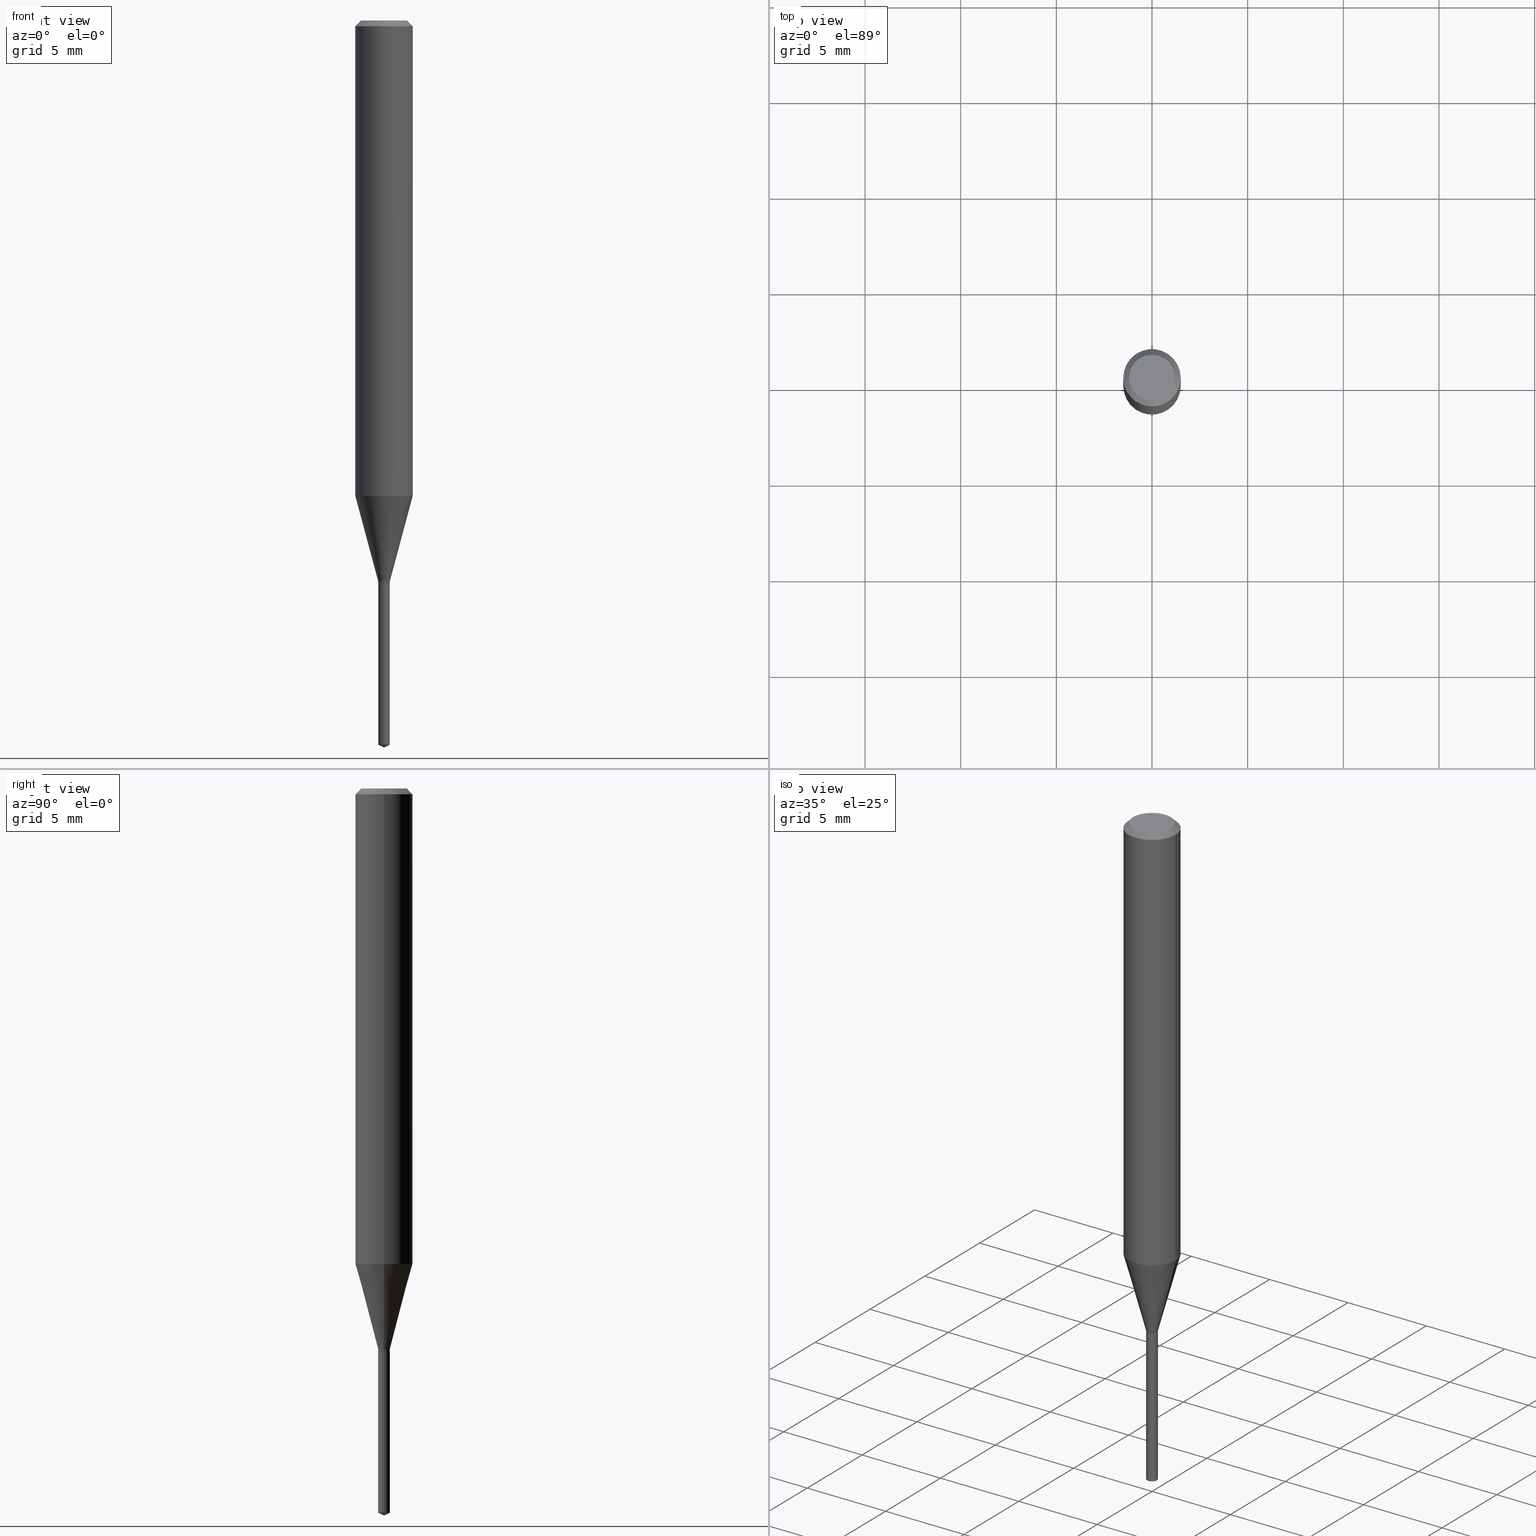
[diagram: canonical four-view strip — front | top / right | iso, engineering-drawing reading convention]
A machine part, canonical four-view strip (front | top / right | iso — engineering-drawing reading convention). The complete STEP part file that produces these views, byte-faithful:
ISO-10303-21;
HEADER;
FILE_DESCRIPTION (( 'STEP AP203' ),
    '1' );
FILE_NAME ('07780.STEP',
    '2024-04-24T02:52:34',
    ( '' ),
    ( '' ),
    'SwSTEP 2.0',
    'SolidWorks 2023',
    '' );
FILE_SCHEMA (( 'CONFIG_CONTROL_DESIGN' ));
ENDSEC;

DATA;
#1 = APPROVAL_ROLE ( '' ) ;
#2 = ORIENTED_EDGE ( 'NONE', *, *, #441, .T. ) ;
#3 = CALENDAR_DATE ( 2024, 23, 4 ) ;
#4 = EDGE_LOOP ( 'NONE', ( #203, #27, #364 ) ) ;
#5 = VECTOR ( 'NONE', #272, 39.37007874015748143 ) ;
#6 = APPROVAL_PERSON_ORGANIZATION ( #171, #343, #467 ) ;
#7 = VERTEX_POINT ( 'NONE', #122 ) ;
#8 = EDGE_CURVE ( 'NONE', #64, #270, #234, .T. ) ;
#9 = DIRECTION ( 'NONE',  ( 1.000000000000000000, -6.982962677686266711E-15, 4.876185090822587894E-29 ) ) ;
#10 = EDGE_CURVE ( 'NONE', #241, #96, #406, .T. ) ;
#11 = VERTEX_POINT ( 'NONE', #165 ) ;
#12 = DIRECTION ( 'NONE',  ( -2.445468806185136597E-29, 3.491481338843145583E-15, 1.000000000000000000 ) ) ;
#13 = AXIS2_PLACEMENT_3D ( 'NONE', #264, #444, #403 ) ;
#14 = FACE_OUTER_BOUND ( 'NONE', #304, .T. ) ;
#15 = LOCAL_TIME ( 22, 52, 34.00000000000000000, #279 ) ;
#16 = CARTESIAN_POINT ( 'NONE',  ( 2.830630143159295633E-29, -4.041389649710940900E-15, -1.157499999999999973 ) ) ;
#17 = ORIENTED_EDGE ( 'NONE', *, *, #448, .F. ) ;
#18 = DIRECTION ( 'NONE',  ( 1.000000000000000000, -6.982962677686251722E-15, 0.000000000000000000 ) ) ;
#19 = DIRECTION ( 'NONE',  ( -2.445468806185136877E-29, 3.491481338843145188E-15, 1.000000000000000000 ) ) ;
#20 = PERSON_AND_ORGANIZATION_ROLE ( 'design_supplier' ) ;
#21 = PLANE ( 'NONE',  #22 ) ;
#22 = AXIS2_PLACEMENT_3D ( 'NONE', #179, #149, #332 ) ;
#23 = CIRCLE ( 'NONE', #193, 0.01149999999999999981 ) ;
#24 = CC_DESIGN_DATE_AND_TIME_ASSIGNMENT ( #320, #187, ( #451 ) ) ;
#25 = LINE ( 'NONE', #392, #245 ) ;
#26 = FACE_OUTER_BOUND ( 'NONE', #269, .T. ) ;
#27 = ORIENTED_EDGE ( 'NONE', *, *, #408, .T. ) ;
#28 = DIRECTION ( 'NONE',  ( -2.445457056059012515E-29, 3.491498165692530705E-15, 1.000000000000000000 ) ) ;
#29 = CIRCLE ( 'NONE', #213, 0.05904999999999999832 ) ;
#30 = EDGE_CURVE ( 'NONE', #266, #170, #380, .T. ) ;
#31 = DIRECTION ( 'NONE',  ( 1.000000000000000000, -6.982962677686251722E-15, 0.000000000000000000 ) ) ;
#32 = DATE_TIME_ROLE ( 'classification_date' ) ;
#33 = ADVANCED_FACE ( 'NONE', ( #417 ), #56, .T. ) ;
#34 = CARTESIAN_POINT ( 'NONE',  ( 2.821826455457028920E-29, -4.028820316891105286E-15, -1.153899999999999926 ) ) ;
#35 = ORIENTED_EDGE ( 'NONE', *, *, #441, .F. ) ;
#36 = DIRECTION ( 'NONE',  ( 1.000000000000000000, -6.982962677686247778E-15, 0.000000000000000000 ) ) ;
#37 = ADVANCED_FACE ( 'NONE', ( #344 ), #54, .T. ) ;
#38 = LOCAL_TIME ( 22, 52, 34.00000000000000000, #326 ) ;
#39 = DIRECTION ( 'NONE',  ( -2.445468806185136597E-29, 3.491481338843145583E-15, 1.000000000000000000 ) ) ;
#40 = EDGE_CURVE ( 'NONE', #311, #71, #413, .T. ) ;
#41 = EDGE_LOOP ( 'NONE', ( #314, #251 ) ) ;
#42 = ORIENTED_EDGE ( 'NONE', *, *, #121, .F. ) ;
#43 = ORIENTED_EDGE ( 'NONE', *, *, #121, .T. ) ;
#44 = ORIENTED_EDGE ( 'NONE', *, *, #448, .T. ) ;
#45 = UNCERTAINTY_MEASURE_WITH_UNIT (LENGTH_MEASURE( 1.000000000000000082E-05 ), #135, 'distance_accuracy_value', 'NONE');
#46 = EDGE_LOOP ( 'NONE', ( #360, #87, #453, #275 ) ) ;
#47 = ADVANCED_FACE ( 'NONE', ( #14 ), #319, .T. ) ;
#48 = CONICAL_SURFACE ( 'NONE', #439, 0.01200000000000000025, 0.2617993877991500740 ) ;
#49 =( GEOMETRIC_REPRESENTATION_CONTEXT ( 3 ) GLOBAL_UNCERTAINTY_ASSIGNED_CONTEXT ( ( #45 ) ) GLOBAL_UNIT_ASSIGNED_CONTEXT ( ( #135, #133, #52 ) ) REPRESENTATION_CONTEXT ( 'NONE', 'WORKASPACE' ) );
#50 = DIRECTION ( 'NONE',  ( -6.328713451373352024E-15, -0.9063077870366461619, 0.4226182617407073239 ) ) ;
#51 = ORIENTED_EDGE ( 'NONE', *, *, #92, .T. ) ;
#52 =( NAMED_UNIT ( * ) SI_UNIT ( $, .STERADIAN. ) SOLID_ANGLE_UNIT ( ) );
#53 = EDGE_CURVE ( 'NONE', #241, #461, #195, .T. ) ;
#54 = CYLINDRICAL_SURFACE ( 'NONE', #472, 0.01200000000000000025 ) ;
#55 = APPLICATION_PROTOCOL_DEFINITION ( 'international standard', 'config_control_design', 1994, #164 ) ;
#56 = CYLINDRICAL_SURFACE ( 'NONE', #302, 0.01200000000000000025 ) ;
#57 = ORIENTED_EDGE ( 'NONE', *, *, #363, .F. ) ;
#58 = DIRECTION ( 'NONE',  ( 1.000000000000000000, -6.982962677686266711E-15, 0.000000000000000000 ) ) ;
#59 = CLOSED_SHELL ( 'NONE', ( #309, #116, #263, #416, #37, #33, #178, #393, #47, #221, #174, #280 ) ) ;
#60 = DIRECTION ( 'NONE',  ( -1.000000000000000000, 6.982962677686266711E-15, 0.000000000000000000 ) ) ;
#61 = CIRCLE ( 'NONE', #303, 0.01149999999999999981 ) ;
#62 = ADVANCED_FACE ( 'NONE', ( #206 ), #412, .T. ) ;
#63 = FACE_OUTER_BOUND ( 'NONE', #94, .T. ) ;
#64 = VERTEX_POINT ( 'NONE', #432 ) ;
#65 = CARTESIAN_POINT ( 'NONE',  ( 0.000000000000000000, 0.000000000000000000, 0.000000000000000000 ) ) ;
#66 = FACE_OUTER_BOUND ( 'NONE', #41, .T. ) ;
#67 = FACE_OUTER_BOUND ( 'NONE', #386, .T. ) ;
#68 = AXIS2_PLACEMENT_3D ( 'NONE', #115, #262, #409 ) ;
#69 = VERTEX_POINT ( 'NONE', #475 ) ;
#70 = SECURITY_CLASSIFICATION_LEVEL ( 'unclassified' ) ;
#71 = VERTEX_POINT ( 'NONE', #359 ) ;
#72 = CARTESIAN_POINT ( 'NONE',  ( 2.888098660104664642E-31, -4.123439461173780879E-17, -0.01181000000000007565 ) ) ;
#73 = FACE_OUTER_BOUND ( 'NONE', #105, .T. ) ;
#74 = DIRECTION ( 'NONE',  ( 1.000000000000000000, -6.982962677686247778E-15, 0.000000000000000000 ) ) ;
#75 = PERSON_AND_ORGANIZATION ( #383, #252 ) ;
#76 = PRODUCT_DEFINITION_FORMATION_WITH_SPECIFIED_SOURCE ( 'ANY', '', #340, .NOT_KNOWN. ) ;
#77 = CARTESIAN_POINT ( 'NONE',  ( 0.01200000000000000025, -4.112615869023340613E-15, -1.153899999999999926 ) ) ;
#78 = EDGE_CURVE ( 'NONE', #96, #7, #134, .T. ) ;
#79 = PLANE ( 'NONE',  #68 ) ;
#80 = DIRECTION ( 'NONE',  ( -2.445468806185136597E-29, 3.491481338843145583E-15, 1.000000000000000000 ) ) ;
#81 = VECTOR ( 'NONE', #324, 39.37007874015748143 ) ;
#82 = APPROVAL_PERSON_ORGANIZATION ( #75, #358, #1 ) ;
#83 = DIRECTION ( 'NONE',  ( -2.445468806185136597E-29, 3.491481338843145583E-15, 1.000000000000000000 ) ) ;
#84 = ADVANCED_BREP_SHAPE_REPRESENTATION ( '07780', ( #138, #294, #487 ), #49 ) ;
#85 = ORIENTED_EDGE ( 'NONE', *, *, #53, .T. ) ;
#86 = EDGE_CURVE ( 'NONE', #11, #69, #477, .T. ) ;
#87 = ORIENTED_EDGE ( 'NONE', *, *, #8, .T. ) ;
#88 = DIRECTION ( 'NONE',  ( 1.000000000000000000, -6.982962677686247778E-15, 0.000000000000000000 ) ) ;
#89 = AXIS2_PLACEMENT_3D ( 'NONE', #298, #39, #191 ) ;
#90 = CIRCLE ( 'NONE', #127, 0.04724000000000000421 ) ;
#91 = DIRECTION ( 'NONE',  ( -2.445468806185136597E-29, 3.491481338843145583E-15, 1.000000000000000000 ) ) ;
#92 = EDGE_CURVE ( 'NONE', #170, #166, #25, .T. ) ;
#93 = DIRECTION ( 'NONE',  ( 1.000000000000000000, -6.982962677686266711E-15, 4.876176775795935232E-29 ) ) ;
#94 = EDGE_LOOP ( 'NONE', ( #414, #85, #361, #375 ) ) ;
#95 = DIRECTION ( 'NONE',  ( -2.445468806185136877E-29, 3.491481338843145188E-15, 1.000000000000000000 ) ) ;
#96 = VERTEX_POINT ( 'NONE', #321 ) ;
#97 =( LENGTH_UNIT ( ) NAMED_UNIT ( * ) SI_UNIT ( $, .METRE. ) );
#98 = CARTESIAN_POINT ( 'NONE',  ( 2.392419274614015052E-29, -3.415740667342255864E-15, -0.9783070095038842728 ) ) ;
#99 = LOCAL_TIME ( 22, 52, 34.00000000000000000, #371 ) ;
#100 = DIRECTION ( 'NONE',  ( -2.445457056059012515E-29, 3.491498165692530705E-15, 1.000000000000000000 ) ) ;
#101 = EDGE_CURVE ( 'NONE', #71, #461, #106, .T. ) ;
#102 = CARTESIAN_POINT ( 'NONE',  ( -0.01200000000000000025, -3.943555188599893977E-15, -1.153899999999999926 ) ) ;
#103 = EDGE_LOOP ( 'NONE', ( #233, #44, #381, #35 ) ) ;
#104 = CALENDAR_DATE ( 2024, 23, 4 ) ;
#105 = EDGE_LOOP ( 'NONE', ( #176, #147, #238, #425 ) ) ;
#106 = LINE ( 'NONE', #146, #159 ) ;
#107 = AXIS2_PLACEMENT_3D ( 'NONE', #307, #91, #9 ) ;
#108 = LOCAL_TIME ( 22, 52, 34.00000000000000000, #478 ) ;
#109 = ORIENTED_EDGE ( 'NONE', *, *, #199, .T. ) ;
#110 = DIRECTION ( 'NONE',  ( -2.445468806185136597E-29, 3.491481338843145583E-15, 1.000000000000000000 ) ) ;
#111 = DIRECTION ( 'NONE',  ( -2.445468806185136597E-29, 3.491481338843145583E-15, 1.000000000000000000 ) ) ;
#112 = DIRECTION ( 'NONE',  ( -2.445468806185136597E-29, 3.491481338843145583E-15, 1.000000000000000000 ) ) ;
#113 = VECTOR ( 'NONE', #19, 39.37007874015748143 ) ;
#114 = CIRCLE ( 'NONE', #390, 0.01200000000000000025 ) ;
#115 = CARTESIAN_POINT ( 'NONE',  ( 2.830630143159295633E-29, -4.041389649710940900E-15, -1.157499999999999973 ) ) ;
#116 = ADVANCED_FACE ( 'NONE', ( #63 ), #118, .T. ) ;
#117 = DIRECTION ( 'NONE',  ( -2.445457056059012515E-29, 3.491498165692530705E-15, 1.000000000000000000 ) ) ;
#118 = CONICAL_SURFACE ( 'NONE', #373, 0.05904999999999999832, 0.7853981633974450594 ) ;
#119 = CIRCLE ( 'NONE', #473, 0.01200000000000000025 ) ;
#120 = ORIENTED_EDGE ( 'NONE', *, *, #433, .T. ) ;
#121 = EDGE_CURVE ( 'NONE', #11, #311, #379, .T. ) ;
#122 = CARTESIAN_POINT ( 'NONE',  ( -0.05904999999999999832, -1.308912045510656317E-15, -0.01181000000000007565 ) ) ;
#123 = FACE_OUTER_BOUND ( 'NONE', #459, .T. ) ;
#124 = ORIENTED_EDGE ( 'NONE', *, *, #139, .F. ) ;
#125 = EDGE_CURVE ( 'NONE', #7, #461, #29, .T. ) ;
#126 = CARTESIAN_POINT ( 'NONE',  ( 2.830630143159295633E-29, -4.041389649710940900E-15, -1.157499999999999973 ) ) ;
#127 = AXIS2_PLACEMENT_3D ( 'NONE', #334, #479, #219 ) ;
#128 = ORIENTED_EDGE ( 'NONE', *, *, #408, .F. ) ;
#129 = ORIENTED_EDGE ( 'NONE', *, *, #346, .T. ) ;
#130 = DIRECTION ( 'NONE',  ( -0.7071067811865218156, 7.493145998870261075E-15, 0.7071067811865732189 ) ) ;
#131 = DIRECTION ( 'NONE',  ( 1.000000000000000000, -6.982962677686265922E-15, 4.876176775795935793E-29 ) ) ;
#132 = ORIENTED_EDGE ( 'NONE', *, *, #148, .F. ) ;
#133 =( NAMED_UNIT ( * ) PLANE_ANGLE_UNIT ( ) SI_UNIT ( $, .RADIAN. ) );
#134 = LINE ( 'NONE', #214, #81 ) ;
#135 =( CONVERSION_BASED_UNIT ( 'INCH', #470 ) LENGTH_UNIT ( ) NAMED_UNIT ( #231 ) );
#136 = AXIS2_PLACEMENT_3D ( 'NONE', #243, #471, #291 ) ;
#137 = VECTOR ( 'NONE', #349, 39.37007874015747433 ) ;
#138 = MANIFOLD_SOLID_BREP ( 'Body-Move/Copy2[1]', #267 ) ;
#139 = EDGE_CURVE ( 'NONE', #435, #311, #211, .T. ) ;
#140 = CARTESIAN_POINT ( 'NONE',  ( 0.05904999999999999832, -4.463468013801466955E-16, -0.01181000000000007565 ) ) ;
#141 = CONICAL_SURFACE ( 'NONE', #430, 0.01200000000000000025, 0.2617993877991500740 ) ;
#142 = PERSON_AND_ORGANIZATION ( #383, #252 ) ;
#143 = CARTESIAN_POINT ( 'NONE',  ( 0.01200000000000000025, -8.379555213223520348E-17, 5.851412130955122461E-31 ) ) ;
#144 = EDGE_CURVE ( 'NONE', #166, #270, #405, .T. ) ;
#145 = APPROVAL_ROLE ( '' ) ;
#146 = CARTESIAN_POINT ( 'NONE',  ( 0.05905000000000006771, -4.123439461173745257E-16, 2.879382386107503723E-30 ) ) ;
#147 = ORIENTED_EDGE ( 'NONE', *, *, #190, .T. ) ;
#148 = EDGE_CURVE ( 'NONE', #71, #69, #429, .T. ) ;
#149 = DIRECTION ( 'NONE',  ( 2.438088387897960049E-29, -3.491481338843145188E-15, -1.000000000000000000 ) ) ;
#150 = CONICAL_SURFACE ( 'NONE', #335, 0.01149999999999999981, 0.7853981633974119747 ) ;
#151 = AXIS2_PLACEMENT_3D ( 'NONE', #292, #110, #188 ) ;
#152 = CC_DESIGN_DATE_AND_TIME_ASSIGNMENT ( #296, #32, ( #260 ) ) ;
#153 = CARTESIAN_POINT ( 'NONE',  ( -0.01200000000000000025, -3.948966984675101032E-15, -1.156999999999999806 ) ) ;
#154 = CYLINDRICAL_SURFACE ( 'NONE', #13, 0.05905000000000006771 ) ;
#155 = CARTESIAN_POINT ( 'NONE',  ( 3.644977878105722837E-29, -5.204073580617272931E-15, -1.490504308102139852 ) ) ;
#156 = DIRECTION ( 'NONE',  ( -6.982962677686265922E-15, -1.000000000000000000, 0.000000000000000000 ) ) ;
#157 = LINE ( 'NONE', #244, #466 ) ;
#158 = ORIENTED_EDGE ( 'NONE', *, *, #78, .T. ) ;
#159 = VECTOR ( 'NONE', #95, 39.37007874015748143 ) ;
#160 = EDGE_LOOP ( 'NONE', ( #437, #232, #180, #342 ) ) ;
#161 = CC_DESIGN_SECURITY_CLASSIFICATION ( #260, ( #76 ) ) ;
#162 = ORIENTED_EDGE ( 'NONE', *, *, #8, .F. ) ;
#163 = ORIENTED_EDGE ( 'NONE', *, *, #338, .T. ) ;
#164 = APPLICATION_CONTEXT ( 'configuration controlled 3d designs of mechanical parts and assemblies' ) ;
#165 = CARTESIAN_POINT ( 'NONE',  ( -0.01200000000000000025, -3.948966984675101032E-15, -1.153899999999999926 ) ) ;
#166 = VERTEX_POINT ( 'NONE', #172 ) ;
#167 = APPLICATION_PROTOCOL_DEFINITION ( 'international standard', 'config_control_design', 1994, #446 ) ;
#168 = AXIS2_PLACEMENT_3D ( 'NONE', #16, #388, #434 ) ;
#169 = DIRECTION ( 'NONE',  ( 2.445468806185136597E-29, -3.491481338843145583E-15, -1.000000000000000000 ) ) ;
#170 = VERTEX_POINT ( 'NONE', #250 ) ;
#171 = PERSON_AND_ORGANIZATION ( #383, #252 ) ;
#172 = CARTESIAN_POINT ( 'NONE',  ( -8.379555213220687845E-17, -0.01200000000000404216, -1.157499999999999973 ) ) ;
#173 = CARTESIAN_POINT ( 'NONE',  ( -0.01149999999999999981, -3.959677235098528912E-15, -1.157499999999999973 ) ) ;
#174 = ADVANCED_FACE ( 'NONE', ( #26 ), #316, .F. ) ;
#175 = LINE ( 'NONE', #318, #177 ) ;
#176 = ORIENTED_EDGE ( 'NONE', *, *, #148, .T. ) ;
#177 = VECTOR ( 'NONE', #288, 39.37007874015748143 ) ;
#178 = ADVANCED_FACE ( 'NONE', ( #67 ), #48, .T. ) ;
#179 = CARTESIAN_POINT ( 'NONE',  ( 4.132873053354867254E-48, -5.900647395337818946E-34, -1.690012582823346072E-19 ) ) ;
#180 = ORIENTED_EDGE ( 'NONE', *, *, #101, .T. ) ;
#181 = PERSON_AND_ORGANIZATION ( #383, #252 ) ;
#182 = CARTESIAN_POINT ( 'NONE',  ( 2.829407408756202832E-29, -4.039643909041518608E-15, -1.156999999999999806 ) ) ;
#183 = EDGE_CURVE ( 'NONE', #415, #11, #284, .T. ) ;
#184 = CARTESIAN_POINT ( 'NONE',  ( -9.261917495037615480E-28, 1.322369467758159045E-13, 37.87397874015748300 ) ) ;
#185 = ORIENTED_EDGE ( 'NONE', *, *, #346, .F. ) ;
#186 = CARTESIAN_POINT ( 'NONE',  ( 3.658648301569888039E-29, -5.223630405692595388E-15, -1.496099999999999985 ) ) ;
#187 = DATE_TIME_ROLE ( 'creation_date' ) ;
#188 = DIRECTION ( 'NONE',  ( 1.000000000000000000, -6.982962677686266711E-15, 4.876176775795936353E-29 ) ) ;
#189 = DATE_AND_TIME ( #3, #99 ) ;
#190 = EDGE_CURVE ( 'NONE', #69, #7, #175, .T. ) ;
#191 = DIRECTION ( 'NONE',  ( 1.000000000000000000, -6.982962677686265133E-15, 0.000000000000000000 ) ) ;
#192 = FACE_OUTER_BOUND ( 'NONE', #46, .T. ) ;
#193 = AXIS2_PLACEMENT_3D ( 'NONE', #348, #12, #88 ) ;
#194 = CARTESIAN_POINT ( 'NONE',  ( 2.830630143159295633E-29, -4.041389649710940900E-15, -1.157499999999999973 ) ) ;
#195 = LINE ( 'NONE', #140, #286 ) ;
#196 = EDGE_LOOP ( 'NONE', ( #109, #200, #57, #124 ) ) ;
#197 = VECTOR ( 'NONE', #130, 39.37007874015748143 ) ;
#198 = CARTESIAN_POINT ( 'NONE',  ( 0.000000000000000000, 0.000000000000000000, 0.000000000000000000 ) ) ;
#199 = EDGE_CURVE ( 'NONE', #435, #415, #235, .T. ) ;
#200 = ORIENTED_EDGE ( 'NONE', *, *, #183, .T. ) ;
#201 = APPROVAL_STATUS ( 'not_yet_approved' ) ;
#202 = CARTESIAN_POINT ( 'NONE',  ( 0.01200000000000000025, -4.112615869023340613E-15, -1.153899999999999926 ) ) ;
#203 = ORIENTED_EDGE ( 'NONE', *, *, #30, .F. ) ;
#204 = DIRECTION ( 'NONE',  ( -2.445468806185136597E-29, 3.491481338843145583E-15, 1.000000000000000000 ) ) ;
#205 = AXIS2_PLACEMENT_3D ( 'NONE', #34, #80, #31 ) ;
#206 = FACE_OUTER_BOUND ( 'NONE', #4, .T. ) ;
#207 = CARTESIAN_POINT ( 'NONE',  ( 0.05904999999999999832, -4.535783407291118600E-16, -0.01181000000000007565 ) ) ;
#208 = CARTESIAN_POINT ( 'NONE',  ( 2.888098660104664642E-31, -4.123439461173780879E-17, -0.01181000000000007565 ) ) ;
#209 = CC_DESIGN_PERSON_AND_ORGANIZATION_ASSIGNMENT ( #142, #289, ( #260 ) ) ;
#210 = PERSON_AND_ORGANIZATION_ROLE ( 'creator' ) ;
#211 = LINE ( 'NONE', #143, #367 ) ;
#212 = ORIENTED_EDGE ( 'NONE', *, *, #30, .T. ) ;
#213 = AXIS2_PLACEMENT_3D ( 'NONE', #72, #323, #354 ) ;
#214 = CARTESIAN_POINT ( 'NONE',  ( -0.05904999999999999832, 3.711095515056362547E-16, -0.01181000000000007565 ) ) ;
#215 = ORIENTED_EDGE ( 'NONE', *, *, #395, .F. ) ;
#216 = DIRECTION ( 'NONE',  ( -2.445468806185136597E-29, 3.491481338843145583E-15, 1.000000000000000000 ) ) ;
#217 = APPROVAL_DATE_TIME ( #401, #366 ) ;
#218 = FACE_OUTER_BOUND ( 'NONE', #103, .T. ) ;
#219 = DIRECTION ( 'NONE',  ( 1.000000000000000000, -6.982962677686266711E-15, 4.876185090822587894E-29 ) ) ;
#220 = APPROVAL_STATUS ( 'not_yet_approved' ) ;
#221 = ADVANCED_FACE ( 'NONE', ( #66 ), #21, .F. ) ;
#222 = FACE_OUTER_BOUND ( 'NONE', #228, .T. ) ;
#223 = SHAPE_DEFINITION_REPRESENTATION ( #484, #84 ) ;
#224 = EDGE_CURVE ( 'NONE', #69, #71, #297, .T. ) ;
#225 = CARTESIAN_POINT ( 'NONE',  ( 2.830630143159295633E-29, -4.041389649710940900E-15, -1.157499999999999973 ) ) ;
#226 = CARTESIAN_POINT ( 'NONE',  ( -9.261917495037615480E-28, 1.322369467758159045E-13, 37.87397874015748300 ) ) ;
#227 = ADVANCED_FACE ( 'NONE', ( #192 ), #300, .T. ) ;
#228 = EDGE_LOOP ( 'NONE', ( #163, #120, #278, #301 ) ) ;
#229 = AXIS2_PLACEMENT_3D ( 'NONE', #226, #117, #488 ) ;
#230 = CARTESIAN_POINT ( 'NONE',  ( 2.888098660104664642E-31, -4.123439461173780879E-17, -0.01181000000000007565 ) ) ;
#231 = DIMENSIONAL_EXPONENTS ( 1.000000000000000000, 0.000000000000000000, 0.000000000000000000, 0.000000000000000000, 0.000000000000000000, 0.000000000000000000, 0.000000000000000000 ) ;
#232 = ORIENTED_EDGE ( 'NONE', *, *, #224, .T. ) ;
#233 = ORIENTED_EDGE ( 'NONE', *, *, #433, .F. ) ;
#234 = LINE ( 'NONE', #312, #5 ) ;
#235 = CIRCLE ( 'NONE', #464, 0.01200000000000000025 ) ;
#236 = AXIS2_PLACEMENT_3D ( 'NONE', #285, #306, #58 ) ;
#237 = CARTESIAN_POINT ( 'NONE',  ( -0.01149999999999999981, -3.957028007924417711E-15, -1.157499999999999973 ) ) ;
#238 = ORIENTED_EDGE ( 'NONE', *, *, #436, .F. ) ;
#239 = ORIENTED_EDGE ( 'NONE', *, *, #125, .T. ) ;
#240 = ORIENTED_EDGE ( 'NONE', *, *, #224, .F. ) ;
#241 = VERTEX_POINT ( 'NONE', #295 ) ;
#242 = DATE_AND_TIME ( #423, #15 ) ;
#243 = CARTESIAN_POINT ( 'NONE',  ( 2.821826455457028920E-29, -4.028820316891105286E-15, -1.153899999999999926 ) ) ;
#244 = CARTESIAN_POINT ( 'NONE',  ( 0.01149999999999999981, -4.121693720504332431E-15, -1.157499999999999973 ) ) ;
#245 = VECTOR ( 'NONE', #100, 39.37007874015748143 ) ;
#246 = AXIS2_PLACEMENT_3D ( 'NONE', #256, #372, #485 ) ;
#247 = DIRECTION ( 'NONE',  ( -0.2588190451025213501, 5.211531920934551042E-15, 0.9659258262890682012 ) ) ;
#248 = PRODUCT_RELATED_PRODUCT_CATEGORY ( 'detail', '', ( #340 ) ) ;
#249 = DIRECTION ( 'NONE',  ( -2.445468806185136597E-29, 3.491481338843145583E-15, 1.000000000000000000 ) ) ;
#250 = CARTESIAN_POINT ( 'NONE',  ( -8.379555213219874332E-17, -0.01200000000000520442, -1.490504308102139852 ) ) ;
#251 = ORIENTED_EDGE ( 'NONE', *, *, #10, .T. ) ;
#252 = ORGANIZATION ( 'UNSPECIFIED', 'UNSPECIFIED', '' ) ;
#253 = DIRECTION ( 'NONE',  ( -2.438088387897960049E-29, 3.491481338843145188E-15, 1.000000000000000000 ) ) ;
#254 = DIRECTION ( 'NONE',  ( -6.982962677686265922E-15, -1.000000000000000000, 0.000000000000000000 ) ) ;
#255 = CALENDAR_DATE ( 2024, 23, 4 ) ;
#256 = CARTESIAN_POINT ( 'NONE',  ( 2.830630143159295633E-29, -4.041389649710940900E-15, -1.157499999999999973 ) ) ;
#257 = ADVANCED_FACE ( 'NONE', ( #443 ), #308, .T. ) ;
#258 = APPROVAL_STATUS ( 'not_yet_approved' ) ;
#259 = DIRECTION ( 'NONE',  ( 1.000000000000000000, -6.982962677686251722E-15, 0.000000000000000000 ) ) ;
#260 = SECURITY_CLASSIFICATION ( '', '', #70 ) ;
#261 = CC_DESIGN_PERSON_AND_ORGANIZATION_ASSIGNMENT ( #355, #20, ( #76 ) ) ;
#262 = DIRECTION ( 'NONE',  ( 2.445457056059012235E-29, -3.491498165692530705E-15, -1.000000000000000000 ) ) ;
#263 = ADVANCED_FACE ( 'NONE', ( #73 ), #154, .T. ) ;
#264 = CARTESIAN_POINT ( 'NONE',  ( 0.000000000000000000, 0.000000000000000000, 0.000000000000000000 ) ) ;
#265 = ORIENTED_EDGE ( 'NONE', *, *, #86, .F. ) ;
#266 = VERTEX_POINT ( 'NONE', #186 ) ;
#267 = CLOSED_SHELL ( 'NONE', ( #227, #62, #257, #482, #427 ) ) ;
#268 = CC_DESIGN_APPROVAL ( #366, ( #76 ) ) ;
#269 = EDGE_LOOP ( 'NONE', ( #282, #17 ) ) ;
#270 = VERTEX_POINT ( 'NONE', #374 ) ;
#271 = ORIENTED_EDGE ( 'NONE', *, *, #86, .T. ) ;
#272 = DIRECTION ( 'NONE',  ( -2.445457056059012515E-29, 3.491498165692530705E-15, 1.000000000000000000 ) ) ;
#273 = AXIS2_PLACEMENT_3D ( 'NONE', #184, #424, #396 ) ;
#274 = CIRCLE ( 'NONE', #357, 0.01200000000000000025 ) ;
#275 = ORIENTED_EDGE ( 'NONE', *, *, #92, .F. ) ;
#276 = DIRECTION ( 'NONE',  ( 1.000000000000000000, 0.000000000000000000, 0.000000000000000000 ) ) ;
#277 = CARTESIAN_POINT ( 'NONE',  ( 0.000000000000000000, 0.000000000000000000, 0.000000000000000000 ) ) ;
#278 = ORIENTED_EDGE ( 'NONE', *, *, #199, .F. ) ;
#279 = COORDINATED_UNIVERSAL_TIME_OFFSET ( 5, 0, .BEHIND. ) ;
#280 = ADVANCED_FACE ( 'NONE', ( #218 ), #150, .T. ) ;
#281 = DIRECTION ( 'NONE',  ( 0.7071067811865452413, -7.319954787623248157E-15, -0.7071067811865497932 ) ) ;
#282 = ORIENTED_EDGE ( 'NONE', *, *, #338, .F. ) ;
#283 = PERSON_AND_ORGANIZATION ( #383, #252 ) ;
#284 = LINE ( 'NONE', #428, #113 ) ;
#285 = CARTESIAN_POINT ( 'NONE',  ( 2.888098660104664642E-31, -4.123439461173780879E-17, -0.01181000000000007565 ) ) ;
#286 = VECTOR ( 'NONE', #281, 39.37007874015748143 ) ;
#287 = CIRCLE ( 'NONE', #205, 0.01200000000000000025 ) ;
#288 = DIRECTION ( 'NONE',  ( -2.445468806185136877E-29, 3.491481338843145188E-15, 1.000000000000000000 ) ) ;
#289 = PERSON_AND_ORGANIZATION_ROLE ( 'classification_officer' ) ;
#290 = CARTESIAN_POINT ( 'NONE',  ( 2.821826455457028920E-29, -4.028820316891105286E-15, -1.153899999999999926 ) ) ;
#291 = DIRECTION ( 'NONE',  ( 1.000000000000000000, -6.982962677686251722E-15, 0.000000000000000000 ) ) ;
#292 = CARTESIAN_POINT ( 'NONE',  ( 0.000000000000000000, 0.000000000000000000, 0.000000000000000000 ) ) ;
#293 = FACE_OUTER_BOUND ( 'NONE', #160, .T. ) ;
#294 = MANIFOLD_SOLID_BREP ( 'Body-Move/Copy2[2]', #59 ) ;
#295 = CARTESIAN_POINT ( 'NONE',  ( 0.04724000000000000421, -3.852183633974369345E-16, -3.380025165621689721E-19 ) ) ;
#296 = DATE_AND_TIME ( #104, #108 ) ;
#297 = CIRCLE ( 'NONE', #89, 0.05905000000000013016 ) ;
#298 = CARTESIAN_POINT ( 'NONE',  ( 2.392419274614015052E-29, -3.415740667342255864E-15, -0.9783070095038842728 ) ) ;
#299 = AXIS2_PLACEMENT_3D ( 'NONE', #126, #490, #463 ) ;
#300 = CYLINDRICAL_SURFACE ( 'NONE', #397, 0.01200000000000000025 ) ;
#301 = ORIENTED_EDGE ( 'NONE', *, *, #455, .F. ) ;
#302 = AXIS2_PLACEMENT_3D ( 'NONE', #198, #83, #465 ) ;
#303 = AXIS2_PLACEMENT_3D ( 'NONE', #225, #369, #36 ) ;
#304 = EDGE_LOOP ( 'NONE', ( #419, #305, #158, #239 ) ) ;
#305 = ORIENTED_EDGE ( 'NONE', *, *, #333, .F. ) ;
#306 = DIRECTION ( 'NONE',  ( -2.445468806185136597E-29, 3.491481338843145583E-15, 1.000000000000000000 ) ) ;
#307 = CARTESIAN_POINT ( 'NONE',  ( 8.265746106709734507E-48, -1.180129479067563789E-33, -3.380025165646692144E-19 ) ) ;
#308 = CONICAL_SURFACE ( 'NONE', #229, 84.42940631927278616, 1.134464013796308901 ) ;
#309 = ADVANCED_FACE ( 'NONE', ( #222 ), #457, .T. ) ;
#310 = LOCAL_TIME ( 22, 52, 34.00000000000000000, #474 ) ;
#311 = VERTEX_POINT ( 'NONE', #77 ) ;
#312 = CARTESIAN_POINT ( 'NONE',  ( 8.526512829124031214E-17, 0.01199999999999595661, -1.157499999999999973 ) ) ;
#313 = DESIGN_CONTEXT ( 'detailed design', #164, 'design' ) ;
#314 = ORIENTED_EDGE ( 'NONE', *, *, #333, .T. ) ;
#315 = CARTESIAN_POINT ( 'NONE',  ( 0.01149999999999999981, -4.121693720504332431E-15, -1.157499999999999973 ) ) ;
#316 = PLANE ( 'NONE',  #486 ) ;
#317 = CARTESIAN_POINT ( 'NONE',  ( 3.644977878105722837E-29, -5.204073580617272931E-15, -1.490504308102139852 ) ) ;
#318 = CARTESIAN_POINT ( 'NONE',  ( -0.05905000000000006771, 4.195754854663396409E-16, -2.904631170795525045E-30 ) ) ;
#319 = CONICAL_SURFACE ( 'NONE', #456, 0.05904999999999999832, 0.7853981633974450594 ) ;
#320 = DATE_AND_TIME ( #445, #38 ) ;
#321 = CARTESIAN_POINT ( 'NONE',  ( -0.04724000000000000421, 3.504923541997677355E-16, -3.380025165670481712E-19 ) ) ;
#322 = PERSON_AND_ORGANIZATION_ROLE ( 'creator' ) ;
#323 = DIRECTION ( 'NONE',  ( -2.445468806185136597E-29, 3.491481338843145583E-15, 1.000000000000000000 ) ) ;
#324 = DIRECTION ( 'NONE',  ( -0.7071067811865452413, 2.468850131082233000E-15, -0.7071067811865497932 ) ) ;
#325 = EDGE_LOOP ( 'NONE', ( #384, #431 ) ) ;
#326 = COORDINATED_UNIVERSAL_TIME_OFFSET ( 5, 0, .BEHIND. ) ;
#327 = VECTOR ( 'NONE', #247, 39.37007874015747433 ) ;
#328 = AXIS2_PLACEMENT_3D ( 'NONE', #317, #353, #391 ) ;
#329 = DIRECTION ( 'NONE',  ( -6.982962677686265922E-15, -1.000000000000000000, 0.000000000000000000 ) ) ;
#330 = FACE_OUTER_BOUND ( 'NONE', #337, .T. ) ;
#331 = APPROVAL_DATE_TIME ( #189, #358 ) ;
#332 = DIRECTION ( 'NONE',  ( -1.000000000000000000, 6.982962677686265922E-15, -4.876176775795935793E-29 ) ) ;
#333 = EDGE_CURVE ( 'NONE', #96, #241, #90, .T. ) ;
#334 = CARTESIAN_POINT ( 'NONE',  ( 8.265746106709734507E-48, -1.180129479067563789E-33, -3.380025165646692144E-19 ) ) ;
#335 = AXIS2_PLACEMENT_3D ( 'NONE', #410, #111, #74 ) ;
#336 = LINE ( 'NONE', #173, #197 ) ;
#337 = EDGE_LOOP ( 'NONE', ( #442, #271, #132, #377 ) ) ;
#338 = EDGE_CURVE ( 'NONE', #458, #468, #61, .T. ) ;
#339 = EDGE_LOOP ( 'NONE', ( #378, #2, #411, #42 ) ) ;
#340 = PRODUCT ( '07780', '07780', '', ( #421 ) ) ;
#341 = APPROVAL_PERSON_ORGANIZATION ( #476, #366, #145 ) ;
#342 = ORIENTED_EDGE ( 'NONE', *, *, #125, .F. ) ;
#343 = APPROVAL ( #201, 'UNSPECIFIED' ) ;
#344 = FACE_OUTER_BOUND ( 'NONE', #196, .T. ) ;
#345 = DIRECTION ( 'NONE',  ( 0.7071067811865218156, -2.468850131081987665E-15, 0.7071067811865732189 ) ) ;
#346 = EDGE_CURVE ( 'NONE', #64, #170, #119, .T. ) ;
#347 = CARTESIAN_POINT ( 'NONE',  ( 3.658648301569888039E-29, -5.223630405692593810E-15, -1.496099999999999985 ) ) ;
#348 = CARTESIAN_POINT ( 'NONE',  ( 2.830630143159295633E-29, -4.041389649710940900E-15, -1.157499999999999973 ) ) ;
#349 = DIRECTION ( 'NONE',  ( 0.2588190451025213501, 1.565188264969621968E-15, 0.9659258262890682012 ) ) ;
#350 = CC_DESIGN_PERSON_AND_ORGANIZATION_ASSIGNMENT ( #181, #322, ( #451 ) ) ;
#351 = ORIENTED_EDGE ( 'NONE', *, *, #40, .T. ) ;
#352 = DIRECTION ( 'NONE',  ( -2.445468806185136597E-29, 3.491481338843145583E-15, 1.000000000000000000 ) ) ;
#353 = DIRECTION ( 'NONE',  ( -2.445457056059012515E-29, 3.491498165692530705E-15, 1.000000000000000000 ) ) ;
#354 = DIRECTION ( 'NONE',  ( 1.000000000000000000, -6.982962677686266711E-15, 0.000000000000000000 ) ) ;
#355 = PERSON_AND_ORGANIZATION ( #383, #252 ) ;
#356 = CARTESIAN_POINT ( 'NONE',  ( 2.830630143159295633E-29, -4.041389649710940900E-15, -1.157499999999999973 ) ) ;
#357 = AXIS2_PLACEMENT_3D ( 'NONE', #426, #204, #18 ) ;
#358 = APPROVAL ( #220, 'UNSPECIFIED' ) ;
#359 = CARTESIAN_POINT ( 'NONE',  ( 0.05905000000000011628, -3.828084613459630390E-15, -0.9783070095038842728 ) ) ;
#360 = ORIENTED_EDGE ( 'NONE', *, *, #489, .T. ) ;
#361 = ORIENTED_EDGE ( 'NONE', *, *, #436, .T. ) ;
#362 = DIRECTION ( 'NONE',  ( 1.000000000000000000, -6.982962677686265133E-15, 0.000000000000000000 ) ) ;
#363 = EDGE_CURVE ( 'NONE', #311, #11, #287, .T. ) ;
#364 = ORIENTED_EDGE ( 'NONE', *, *, #489, .F. ) ;
#365 = DIRECTION ( 'NONE',  ( -2.445457056059012515E-29, 3.491498165692530705E-15, 1.000000000000000000 ) ) ;
#366 = APPROVAL ( #258, 'UNSPECIFIED' ) ;
#367 = VECTOR ( 'NONE', #438, 39.37007874015748143 ) ;
#368 = CC_DESIGN_APPROVAL ( #358, ( #260 ) ) ;
#369 = DIRECTION ( 'NONE',  ( -2.445468806185136597E-29, 3.491481338843145583E-15, 1.000000000000000000 ) ) ;
#370 = CYLINDRICAL_SURFACE ( 'NONE', #151, 0.05905000000000006771 ) ;
#371 = COORDINATED_UNIVERSAL_TIME_OFFSET ( 5, 0, .BEHIND. ) ;
#372 = DIRECTION ( 'NONE',  ( -2.445468806185136597E-29, 3.491481338843145583E-15, 1.000000000000000000 ) ) ;
#373 = AXIS2_PLACEMENT_3D ( 'NONE', #208, #400, #60 ) ;
#374 = CARTESIAN_POINT ( 'NONE',  ( 8.526512829124852122E-17, 0.01199999999999595661, -1.157499999999999973 ) ) ;
#375 = ORIENTED_EDGE ( 'NONE', *, *, #78, .F. ) ;
#376 = DIRECTION ( 'NONE',  ( -1.000000000000000000, 6.982962677686266711E-15, 0.000000000000000000 ) ) ;
#377 = ORIENTED_EDGE ( 'NONE', *, *, #40, .F. ) ;
#378 = ORIENTED_EDGE ( 'NONE', *, *, #183, .F. ) ;
#379 = CIRCLE ( 'NONE', #136, 0.01200000000000000025 ) ;
#380 = LINE ( 'NONE', #347, #389 ) ;
#381 = ORIENTED_EDGE ( 'NONE', *, *, #455, .T. ) ;
#382 = CYLINDRICAL_SURFACE ( 'NONE', #299, 0.01200000000000000025 ) ;
#383 = PERSON ( 'UNSPECIFIED', 'UNSPECIFIED', 'UNSPECIFIED', ('UNSPECIFIED'), ('UNSPECIFIED'), ('UNSPECIFIED') ) ;
#384 = ORIENTED_EDGE ( 'NONE', *, *, #144, .T. ) ;
#385 = PERSON_AND_ORGANIZATION_ROLE ( 'design_owner' ) ;
#386 = EDGE_LOOP ( 'NONE', ( #265, #43, #351, #240 ) ) ;
#387 = CARTESIAN_POINT ( 'NONE',  ( 0.01200000000000000025, -4.123439461173753935E-15, -1.156999999999999806 ) ) ;
#388 = DIRECTION ( 'NONE',  ( -2.445457056059012515E-29, 3.491498165692530705E-15, 1.000000000000000000 ) ) ;
#389 = VECTOR ( 'NONE', #50, 39.37007874015748854 ) ;
#390 = AXIS2_PLACEMENT_3D ( 'NONE', #402, #28, #329 ) ;
#391 = DIRECTION ( 'NONE',  ( -6.982962677686265922E-15, -1.000000000000000000, 0.000000000000000000 ) ) ;
#392 = CARTESIAN_POINT ( 'NONE',  ( -8.379555213220687845E-17, -0.01200000000000404216, -1.157499999999999973 ) ) ;
#393 = ADVANCED_FACE ( 'NONE', ( #293 ), #370, .T. ) ;
#394 = DIRECTION ( 'NONE',  ( 1.000000000000000000, -6.982962677686251722E-15, 0.000000000000000000 ) ) ;
#395 = EDGE_CURVE ( 'NONE', #270, #166, #114, .T. ) ;
#396 = DIRECTION ( 'NONE',  ( -6.982962677686268288E-15, -1.000000000000000000, 3.520397390770518557E-15 ) ) ;
#397 = AXIS2_PLACEMENT_3D ( 'NONE', #194, #365, #254 ) ;
#398 = APPROVAL_DATE_TIME ( #242, #343 ) ;
#399 = VECTOR ( 'NONE', #447, 39.37007874015748854 ) ;
#400 = DIRECTION ( 'NONE',  ( 2.445468806185136597E-29, -3.491481338843145583E-15, -1.000000000000000000 ) ) ;
#401 = DATE_AND_TIME ( #255, #310 ) ;
#402 = CARTESIAN_POINT ( 'NONE',  ( 2.830630143159295633E-29, -4.041389649710940900E-15, -1.157499999999999973 ) ) ;
#403 = DIRECTION ( 'NONE',  ( 1.000000000000000000, -6.982962677686266711E-15, 4.876176775795936353E-29 ) ) ;
#404 = PERSON_AND_ORGANIZATION ( #383, #252 ) ;
#405 = CIRCLE ( 'NONE', #168, 0.01200000000000000025 ) ;
#406 = CIRCLE ( 'NONE', #107, 0.04724000000000000421 ) ;
#407 = FACE_OUTER_BOUND ( 'NONE', #325, .T. ) ;
#408 = EDGE_CURVE ( 'NONE', #266, #64, #481, .T. ) ;
#409 = DIRECTION ( 'NONE',  ( 6.982962677686265922E-15, 1.000000000000000000, -3.491498165692530705E-15 ) ) ;
#410 = CARTESIAN_POINT ( 'NONE',  ( 2.830630143159295633E-29, -4.041389649710940900E-15, -1.157499999999999973 ) ) ;
#411 = ORIENTED_EDGE ( 'NONE', *, *, #139, .T. ) ;
#412 = CONICAL_SURFACE ( 'NONE', #273, 84.42940631927278616, 1.134464013796308901 ) ;
#413 = LINE ( 'NONE', #202, #137 ) ;
#414 = ORIENTED_EDGE ( 'NONE', *, *, #10, .F. ) ;
#415 = VERTEX_POINT ( 'NONE', #153 ) ;
#416 = ADVANCED_FACE ( 'NONE', ( #330 ), #141, .T. ) ;
#417 = FACE_OUTER_BOUND ( 'NONE', #339, .T. ) ;
#418 = CIRCLE ( 'NONE', #328, 0.01200000000000000025 ) ;
#419 = ORIENTED_EDGE ( 'NONE', *, *, #53, .F. ) ;
#420 = CC_DESIGN_PERSON_AND_ORGANIZATION_ASSIGNMENT ( #283, #385, ( #340 ) ) ;
#421 = MECHANICAL_CONTEXT ( 'NONE', #446, 'mechanical' ) ;
#422 = DIRECTION ( 'NONE',  ( -2.445468806185136597E-29, 3.491481338843145583E-15, 1.000000000000000000 ) ) ;
#423 = CALENDAR_DATE ( 2024, 23, 4 ) ;
#424 = DIRECTION ( 'NONE',  ( -2.445457056059012515E-29, 3.491498165692530705E-15, 1.000000000000000000 ) ) ;
#425 = ORIENTED_EDGE ( 'NONE', *, *, #101, .F. ) ;
#426 = CARTESIAN_POINT ( 'NONE',  ( 2.829407408756202832E-29, -4.039643909041518608E-15, -1.156999999999999806 ) ) ;
#427 = ADVANCED_FACE ( 'NONE', ( #407 ), #79, .F. ) ;
#428 = CARTESIAN_POINT ( 'NONE',  ( -0.01200000000000000025, 8.526512829121202408E-17, -5.902722108305887001E-31 ) ) ;
#429 = CIRCLE ( 'NONE', #449, 0.05905000000000013016 ) ;
#430 = AXIS2_PLACEMENT_3D ( 'NONE', #483, #112, #259 ) ;
#431 = ORIENTED_EDGE ( 'NONE', *, *, #395, .T. ) ;
#432 = CARTESIAN_POINT ( 'NONE',  ( 8.526512829124847192E-17, 0.01199999999999479781, -1.490504308102139852 ) ) ;
#433 = EDGE_CURVE ( 'NONE', #468, #415, #336, .T. ) ;
#434 = DIRECTION ( 'NONE',  ( -6.982962677686265922E-15, -1.000000000000000000, 0.000000000000000000 ) ) ;
#435 = VERTEX_POINT ( 'NONE', #387 ) ;
#436 = EDGE_CURVE ( 'NONE', #461, #7, #440, .T. ) ;
#437 = ORIENTED_EDGE ( 'NONE', *, *, #190, .F. ) ;
#438 = DIRECTION ( 'NONE',  ( -2.445468806185136877E-29, 3.491481338843145188E-15, 1.000000000000000000 ) ) ;
#439 = AXIS2_PLACEMENT_3D ( 'NONE', #290, #352, #469 ) ;
#440 = CIRCLE ( 'NONE', #236, 0.05904999999999999832 ) ;
#441 = EDGE_CURVE ( 'NONE', #415, #435, #274, .T. ) ;
#442 = ORIENTED_EDGE ( 'NONE', *, *, #363, .T. ) ;
#443 = FACE_OUTER_BOUND ( 'NONE', #460, .T. ) ;
#444 = DIRECTION ( 'NONE',  ( -2.445468806185136597E-29, 3.491481338843145583E-15, 1.000000000000000000 ) ) ;
#445 = CALENDAR_DATE ( 2024, 23, 4 ) ;
#446 = APPLICATION_CONTEXT ( 'configuration controlled 3d designs of mechanical parts and assemblies' ) ;
#447 = DIRECTION ( 'NONE',  ( 6.439704144417007476E-15, 0.9063077870366490485, 0.4226182617407009956 ) ) ;
#448 = EDGE_CURVE ( 'NONE', #468, #458, #23, .T. ) ;
#449 = AXIS2_PLACEMENT_3D ( 'NONE', #98, #216, #362 ) ;
#450 = CARTESIAN_POINT ( 'NONE',  ( 3.658675741637279389E-29, -5.223591451536267840E-15, -1.496099999999999985 ) ) ;
#451 = PRODUCT_DEFINITION ( 'UNKNOWN', '', #76, #313 ) ;
#452 = DIRECTION ( 'NONE',  ( -2.445457056059012515E-29, 3.491498165692530705E-15, 1.000000000000000000 ) ) ;
#453 = ORIENTED_EDGE ( 'NONE', *, *, #144, .F. ) ;
#454 = DIRECTION ( 'NONE',  ( 0.000000000000000000, 0.000000000000000000, 1.000000000000000000 ) ) ;
#455 = EDGE_CURVE ( 'NONE', #458, #435, #157, .T. ) ;
#456 = AXIS2_PLACEMENT_3D ( 'NONE', #230, #169, #376 ) ;
#457 = CONICAL_SURFACE ( 'NONE', #246, 0.01149999999999999981, 0.7853981633974119747 ) ;
#458 = VERTEX_POINT ( 'NONE', #315 ) ;
#459 = EDGE_LOOP ( 'NONE', ( #162, #129, #51, #215 ) ) ;
#460 = EDGE_LOOP ( 'NONE', ( #128, #212, #185 ) ) ;
#461 = VERTEX_POINT ( 'NONE', #207 ) ;
#462 = CC_DESIGN_PERSON_AND_ORGANIZATION_ASSIGNMENT ( #404, #210, ( #76 ) ) ;
#463 = DIRECTION ( 'NONE',  ( -6.982962677686265922E-15, -1.000000000000000000, 0.000000000000000000 ) ) ;
#464 = AXIS2_PLACEMENT_3D ( 'NONE', #182, #249, #394 ) ;
#465 = DIRECTION ( 'NONE',  ( 1.000000000000000000, -6.982962677686266711E-15, 4.876176775795935232E-29 ) ) ;
#466 = VECTOR ( 'NONE', #345, 39.37007874015748143 ) ;
#467 = APPROVAL_ROLE ( '' ) ;
#468 = VERTEX_POINT ( 'NONE', #237 ) ;
#469 = DIRECTION ( 'NONE',  ( 1.000000000000000000, -6.982962677686251722E-15, 0.000000000000000000 ) ) ;
#470 = LENGTH_MEASURE_WITH_UNIT ( LENGTH_MEASURE( 0.02539999999999999897 ), #97 );
#471 = DIRECTION ( 'NONE',  ( -2.445468806185136597E-29, 3.491481338843145583E-15, 1.000000000000000000 ) ) ;
#472 = AXIS2_PLACEMENT_3D ( 'NONE', #277, #422, #93 ) ;
#473 = AXIS2_PLACEMENT_3D ( 'NONE', #155, #452, #156 ) ;
#474 = COORDINATED_UNIVERSAL_TIME_OFFSET ( 5, 0, .BEHIND. ) ;
#475 = CARTESIAN_POINT ( 'NONE',  ( -0.05905000000000011628, -2.996165181875915977E-15, -0.9783070095038842728 ) ) ;
#476 = PERSON_AND_ORGANIZATION ( #383, #252 ) ;
#477 = LINE ( 'NONE', #102, #327 ) ;
#478 = COORDINATED_UNIVERSAL_TIME_OFFSET ( 5, 0, .BEHIND. ) ;
#479 = DIRECTION ( 'NONE',  ( -2.445468806185136597E-29, 3.491481338843145583E-15, 1.000000000000000000 ) ) ;
#480 = CC_DESIGN_APPROVAL ( #343, ( #451 ) ) ;
#481 = LINE ( 'NONE', #450, #399 ) ;
#482 = ADVANCED_FACE ( 'NONE', ( #123 ), #382, .T. ) ;
#483 = CARTESIAN_POINT ( 'NONE',  ( 2.821826455457028920E-29, -4.028820316891105286E-15, -1.153899999999999926 ) ) ;
#484 = PRODUCT_DEFINITION_SHAPE ( 'NONE', 'NONE',  #451 ) ;
#485 = DIRECTION ( 'NONE',  ( 1.000000000000000000, -6.982962677686247778E-15, 0.000000000000000000 ) ) ;
#486 = AXIS2_PLACEMENT_3D ( 'NONE', #356, #253, #131 ) ;
#487 = AXIS2_PLACEMENT_3D ( 'NONE', #65, #454, #276 ) ;
#488 = DIRECTION ( 'NONE',  ( -6.982962677686268288E-15, -1.000000000000000000, 3.520397390770518557E-15 ) ) ;
#489 = EDGE_CURVE ( 'NONE', #170, #64, #418, .T. ) ;
#490 = DIRECTION ( 'NONE',  ( -2.445457056059012515E-29, 3.491498165692530705E-15, 1.000000000000000000 ) ) ;
ENDSEC;
END-ISO-10303-21;
